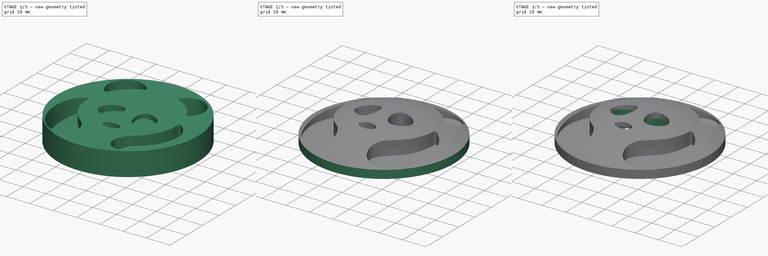
[diagram: build sequence overview — one tinted view per stage of 3, left to right]
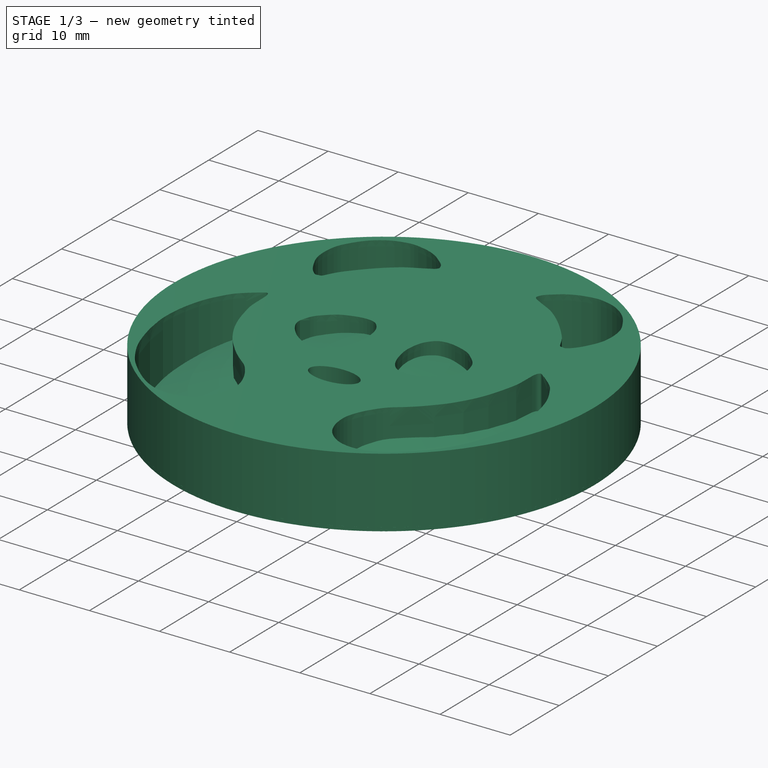
[diagram: stage 1 of 3 — iso view after this stage's code; geometry added in this stage tinted green]
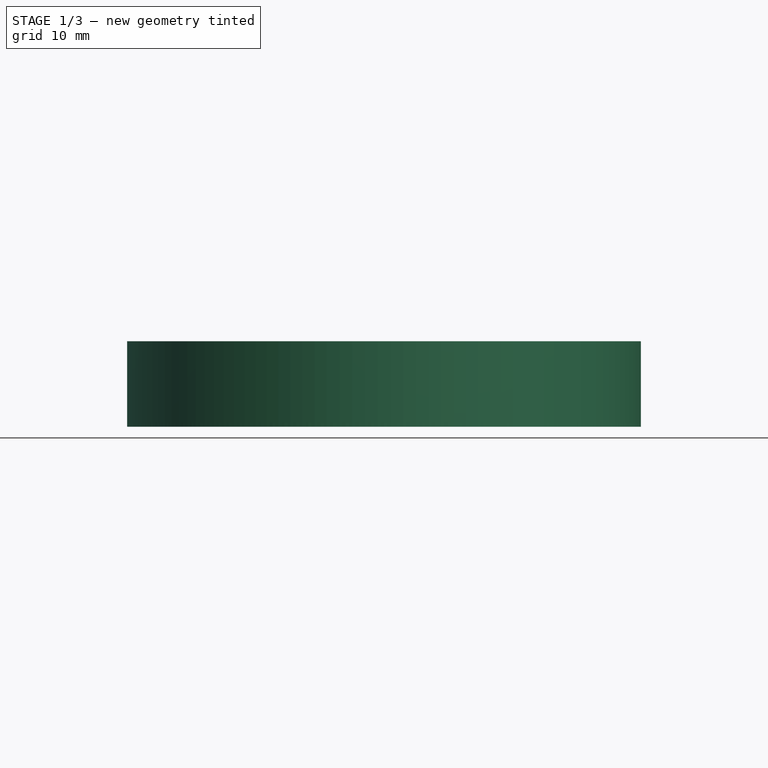
[diagram: stage 1 of 3 — front view after this stage's code; geometry added in this stage tinted green]
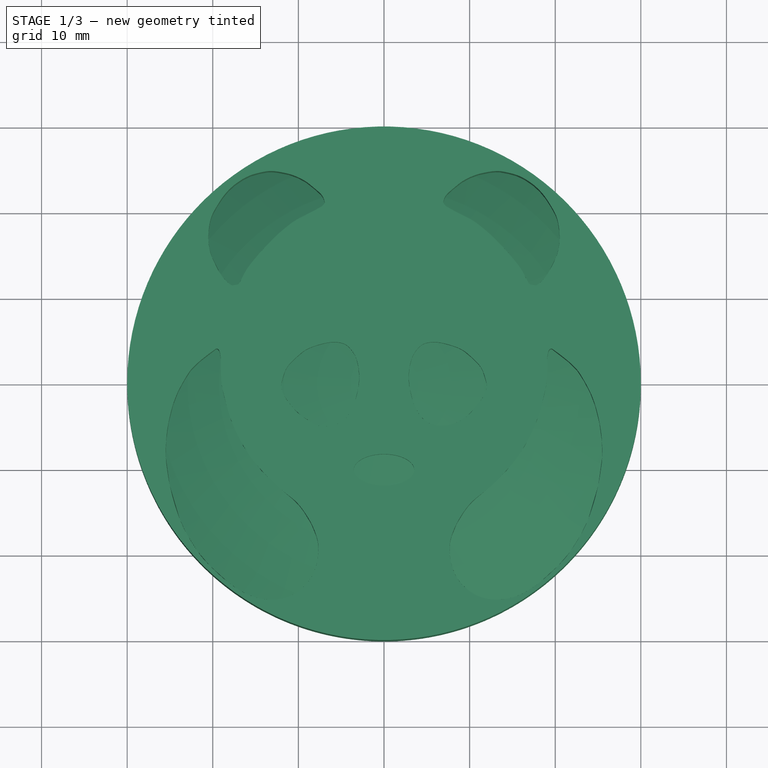
[diagram: stage 1 of 3 — top view after this stage's code; geometry added in this stage tinted green]
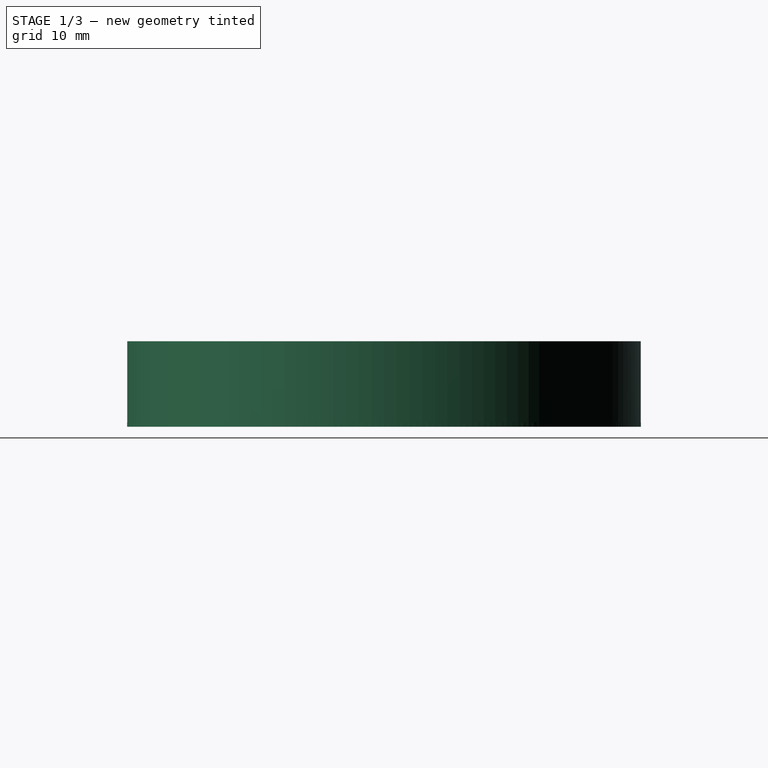
[diagram: stage 1 of 3 — right view after this stage's code; geometry added in this stage tinted green]
FCSTD DOCUMENT  (FreeCAD 1.0R39285 (Git))
Label: PandaMushroom
License: All rights reserved
LicenseURL: https://en.wikipedia.org/wiki/All_rights_reserved
objects: Sketcher::SketchObject×4, Part::Extrusion×3, Image::ImagePlane×1, Spreadsheet::Sheet×1, Part::Revolution×1, Part::MultiCommon×1, Part::MultiFuse×1, Part::Cut×1
note: 15 computed .brp shape members not serialized (recipe doc carries the construction recipe); baked Part::Feature solids carry a one-line shape summary decoded from their .brp

FEATURE [Spreadsheet::Sheet] Spreadsheet  label="dim"
  cells = A1='mushroom_base; B1(mushroom_base)==3 mm; A2='mushroom_radius; B2(mushroom_radius)==30 mm; A3='stem_radius; B3(stem_radius)==13 mm
FEATURE [Sketcher::SketchObject] Sketch002
  ArcFitTolerance = 1e-06
  AttachmentSupport = -> [Sketch001]
  FullyConstrained = true
  MakeInternals = false
  MapMode = 4
  Placement = pos=(0,0,0) rot=(0.57735,0.57735,0.57735;2.0944rad)
  expr: Constraints[14] = <<dim>>.mushroom_base
  expr: Constraints[1] = <<dim>>.mushroom_radius
  sketch-geometry (7):
    g0: GeomPoint X=-1.5947e-12 Y=11.5 Z=0
    g1: ArcOfCircle [constr] CenterX=-1.3844e-12 CenterY=-48.75 CenterZ=0 NormalX=0 NormalY=0 NormalZ=1 AngleXU=0 Radius=60.25 StartAngle=1.04959 EndAngle=2.092
    g2: ArcOfCircle CenterX=-1.3844e-12 CenterY=-48.75 CenterZ=0 NormalX=0 NormalY=0 NormalZ=1 AngleXU=0 Radius=60.25 StartAngle=1.04959 EndAngle=1.5708
    g3: LineSegment StartX=-1.5947e-12 StartY=11.5 StartZ=0 EndX=0 EndY=3.5 EndZ=0
    g4: LineSegment StartX=0 StartY=3.5 StartZ=0 EndX=0 EndY=3 EndZ=0
    g5: LineSegment StartX=0 StartY=3 StartZ=0 EndX=30 EndY=3 EndZ=0
    g6: LineSegment StartX=30 StartY=3 StartZ=0 EndX=30 EndY=3.5 EndZ=0
  constraints (19):
    c: PointOnObject(g3,g-2)
    c: DistanceX(g3,g1) = 30
    c: PointOnObject(g0,g-2)
    c: Symmetric(g1,g1,g-2)
    c: Coincident(g2,g0)
    c: Coincident(g2,g1)
    c: Coincident(g3,g0)
    c: Coincident(g3,g4)
    c: PointOnObject(g4,g-2)
    c: Coincident(g4,g5)
    c: Horizontal(g5)
    c: Coincident(g5,g6)
    c: Coincident(g6,g2)
    c: Vertical(g6)
    c: Distance(g4,g-1) = 3
    c: Coincident(g2,g1)
    c: Horizontal(g1,g3)
    c: DistanceY(g4,g4) = 0.5
    c: DistanceY(g3,g0) = 8
FEATURE [Part::Revolution] Revolve  label="Dome"
  Angle = 360
  Axis = (0,0,1)
  Base = (0,0,0)
  FaceMakerClass = Part::FaceMakerBullseye
  Solid = true
  Source = -> Sketch002
  Symmetric = false
FEATURE [Sketcher::SketchObject] Sketch
  ArcFitTolerance = 1e-06
  FullyConstrained = false
  MakeInternals = false
  MapMode = 5
  sketch-geometry (476):
    g0: Ellipse CenterX=0 CenterY=-10.1092 CenterZ=0 NormalX=0 NormalY=0 NormalZ=1 MajorRadius=3.52812 MinorRadius=1.83479 AngleXU=0
    g1: LineSegment [constr] StartX=3.52812 StartY=-10.1092 StartZ=0 EndX=-3.52812 EndY=-10.1092 EndZ=0
    g2: LineSegment [constr] StartX=0 StartY=-8.27442 StartZ=0 EndX=0 EndY=-11.944 EndZ=0
    g3: GeomPoint [constr] X=3.0135 Y=-10.1092 Z=0
    g4: GeomPoint [constr] X=-3.0135 Y=-10.1092 Z=0
    g5-g46: Circle [constr] x42 (B-spline internal-alignment scaffolding for g47; pole/knot coordinates omitted)
    g47: BSplineCurve PolesCount=42 KnotsCount=40 Degree=3 IsPeriodic=0
    g48-g87: GeomPoint [constr] x40 (B-spline internal-alignment scaffolding for g47; pole/knot coordinates omitted)
    g88-g129: Circle [constr] x42 (B-spline internal-alignment scaffolding for g130; pole/knot coordinates omitted)
    g130: BSplineCurve PolesCount=42 KnotsCount=40 Degree=3 IsPeriodic=0
    g131-g170: GeomPoint [constr] x40 (B-spline internal-alignment scaffolding for g130; pole/knot coordinates omitted)
    g171: Circle CenterX=0 CenterY=0 CenterZ=0 NormalX=0 NormalY=0 NormalZ=1 AngleXU=0 Radius=30
    g172-g199: Circle [constr] x28 (B-spline internal-alignment scaffolding for g200; pole/knot coordinates omitted)
    g200: BSplineCurve PolesCount=28 KnotsCount=26 Degree=3 IsPeriodic=0
    g201-g226: GeomPoint [constr] x26 (B-spline internal-alignment scaffolding for g200; pole/knot coordinates omitted)
    g227-g254: Circle [constr] x28 (B-spline internal-alignment scaffolding for g255; pole/knot coordinates omitted)
    g255: BSplineCurve PolesCount=28 KnotsCount=26 Degree=3 IsPeriodic=0
    g256-g281: GeomPoint [constr] x26 (B-spline internal-alignment scaffolding for g255; pole/knot coordinates omitted)
    g282-g330: Circle [constr] x49 (B-spline internal-alignment scaffolding for g331; pole/knot coordinates omitted)
    g331: BSplineCurve PolesCount=49 KnotsCount=47 Degree=3 IsPeriodic=0
    g332-g378: GeomPoint [constr] x47 (B-spline internal-alignment scaffolding for g331; pole/knot coordinates omitted)
    g379-g414: Circle [constr] x36 (B-spline internal-alignment scaffolding for g415; pole/knot coordinates omitted)
    g415: BSplineCurve PolesCount=49 KnotsCount=47 Degree=3 IsPeriodic=0
    g416-g447: GeomPoint [constr] x32 (B-spline internal-alignment scaffolding for g415; pole/knot coordinates omitted)
    g448-g460: Circle [constr] x13 (B-spline internal-alignment scaffolding for g415; pole/knot coordinates omitted)
    g461-g475: GeomPoint [constr] x15 (B-spline internal-alignment scaffolding for g415; pole/knot coordinates omitted)
  constraints (122):
    c: InternalAlignment(g1-g4 -> g0) x4
    c: PointOnObject(g0,g-2)
    c: Horizontal(g1)
    c: Weight(g5) = 1
    c: Equal(g5, g6-g46) x41
    c: InternalAlignment(g5-g46 -> g47) x42
    c: InternalAlignment(g48-g87 -> g47) x40
    c: PointOnObject(g7,g5)
    c: PointOnObject(g8,g7)
    c: PointOnObject(g10,g9)
    c: PointOnObject(g11,g10)
    c: PointOnObject(g13,g12)
    c: PointOnObject(g14,g13)
    c: PointOnObject(g15,g14)
    c: PointOnObject(g16,g15)
    c: PointOnObject(g18,g17)
    c: PointOnObject(g19,g18)
    c: PointOnObject(g21,g20)
    c: PointOnObject(g22,g21)
    c: PointOnObject(g24,g23)
    c: PointOnObject(g25,g24)
    c: PointOnObject(g26,g25)
    c: PointOnObject(g27,g26)
    c: PointOnObject(g28,g27)
    c: PointOnObject(g30,g29)
    c: PointOnObject(g31,g29)
    c: PointOnObject(g33,g30)
    c: PointOnObject(g40,g39)
    c: PointOnObject(g41,g40)
    c: PointOnObject(g42,g41)
    c: PointOnObject(g44,g6)
    c: PointOnObject(g45,g43)
    c: Coincident(g46,g5)
    c: Weight(g88) = 1
    c: Equal(g88, g89-g129) x41
    c: InternalAlignment(g88-g129 -> g130) x42
    c: InternalAlignment(g131-g170 -> g130) x40
    c: PointOnObject(g90,g88)
    c: PointOnObject(g91,g90)
    c: PointOnObject(g93,g92)
    c: PointOnObject(g94,g93)
    c: PointOnObject(g96,g95)
    c: PointOnObject(g97,g96)
    c: PointOnObject(g98,g97)
    c: PointOnObject(g99,g98)
    c: PointOnObject(g101,g100)
    c: PointOnObject(g102,g101)
    c: PointOnObject(g104,g103)
    c: PointOnObject(g105,g104)
    c: PointOnObject(g107,g106)
    c: PointOnObject(g108,g107)
    c: PointOnObject(g109,g108)
    c: PointOnObject(g110,g109)
    c: PointOnObject(g111,g110)
    c: PointOnObject(g113,g112)
    c: PointOnObject(g114,g112)
    c: PointOnObject(g116,g113)
    c: PointOnObject(g123,g122)
    c: PointOnObject(g124,g123)
    c: PointOnObject(g125,g124)
    c: PointOnObject(g127,g89)
    c: PointOnObject(g128,g126)
    c: Coincident(g129,g88)
    c: Coincident(g171,g-1)
    c: Radius(g171) = 30
    c: Weight(g172) = 1
    c: Equal(g172, g173-g199) x27
    c: InternalAlignment(g172-g199 -> g200) x28
    c: InternalAlignment(g201-g226 -> g200) x26
    c: PointOnObject(g172,g-1)
    c: PointOnObject(g174,g173)
    c: PointOnObject(g175,g174)
    c: PointOnObject(g179,g178)
    c: PointOnObject(g180,g179)
    c: PointOnObject(g182,g181)
    c: PointOnObject(g184,g183)
    c: PointOnObject(g190,g189)
    c: PointOnObject(g191,g190)
    c: PointOnObject(g192,g191)
    c: PointOnObject(g193,g192)
    c: PointOnObject(g195,g194)
    c: PointOnObject(g196,g195)
    c: PointOnObject(g197,g196)
    c: Coincident(g199,g172)
    c: Weight(g227) = 1
    c: Equal(g227, g228-g254) x27
    c: InternalAlignment(g227-g254 -> g255) x28
    c: InternalAlignment(g256-g281 -> g255) x26
    c: PointOnObject(g229,g228)
    c: PointOnObject(g230,g229)
    c: PointOnObject(g234,g233)
    c: PointOnObject(g235,g234)
    c: PointOnObject(g237,g236)
    c: PointOnObject(g239,g238)
    c: PointOnObject(g245,g244)
    c: PointOnObject(g246,g245)
    c: PointOnObject(g247,g246)
    c: PointOnObject(g248,g247)
    c: PointOnObject(g250,g249)
    c: PointOnObject(g251,g250)
    c: PointOnObject(g252,g251)
    c: Coincident(g254,g227)
    c: Weight(g282) = 1
    c: Equal(g282, g283-g330) x48
    c: InternalAlignment(g282-g330 -> g331) x49
    c: InternalAlignment(g332-g378 -> g331) x47
    c: PointOnObject(g283,g282)
    c: PointOnObject(g323,g322)
    c: Coincident(g330,g282)
    c: Weight(g379) = 1
    c: Equal(g379, g380-g398) x19
    c: Equal(g379, g448-g460) x13
    c: Equal(g379, g399-g414) x16
    c: InternalAlignment(g379-g398 -> g415) x20
    c: InternalAlignment(g448-g460 -> g415) x13
    c: InternalAlignment(g399-g414 -> g415) x16
    c: InternalAlignment(g416-g433 -> g415) x18
    c: InternalAlignment(g461-g475 -> g415) x15
    c: InternalAlignment(g434-g447 -> g415) x14
    c: PointOnObject(g380,g379)
    c: PointOnObject(g407,g406)
    c: Coincident(g414,g379)
FEATURE [Part::Extrusion] Extrude001  label="White"
  Base = -> Sketch
  Dir = (0,0,1)
  DirMode = 2
  FaceMakerClass = Part::FaceMakerBullseye
  FaceMakerMode = 3
  LengthFwd = 10
  LengthRev = 0
  Placement = pos=(0,0,3) rot=(0,0,1;0rad)
  Solid = true
  Symmetric = false
  expr: .Placement.Base.z = <<dim>>.mushroom_base
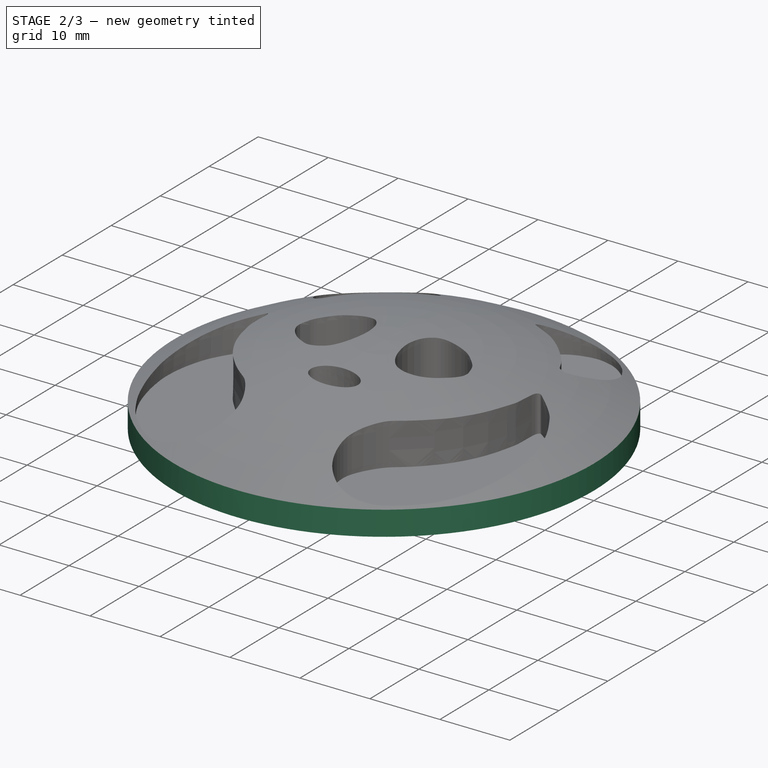
[diagram: stage 2 of 3 — iso view after this stage's code; geometry added in this stage tinted green]
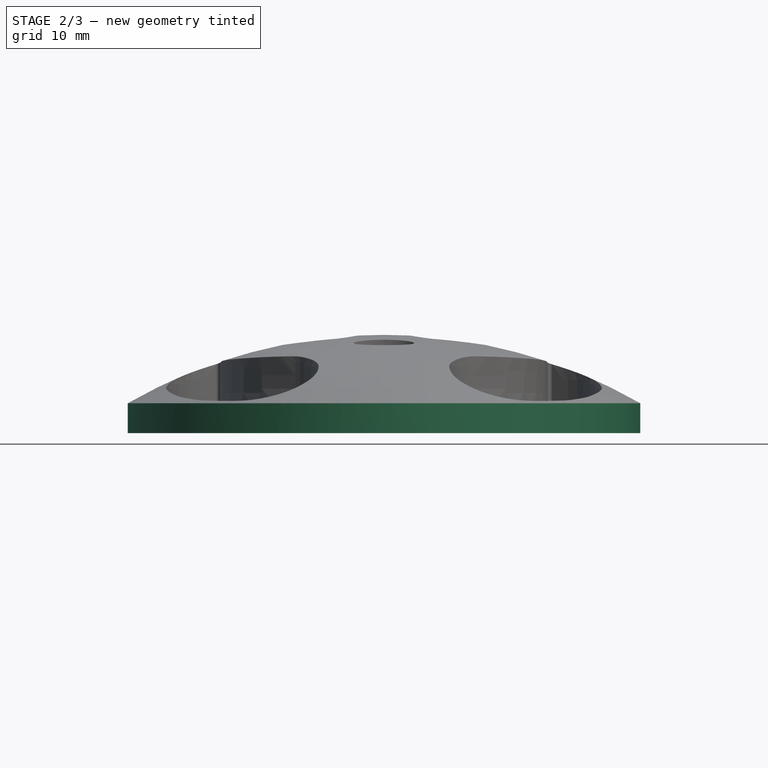
[diagram: stage 2 of 3 — front view after this stage's code; geometry added in this stage tinted green]
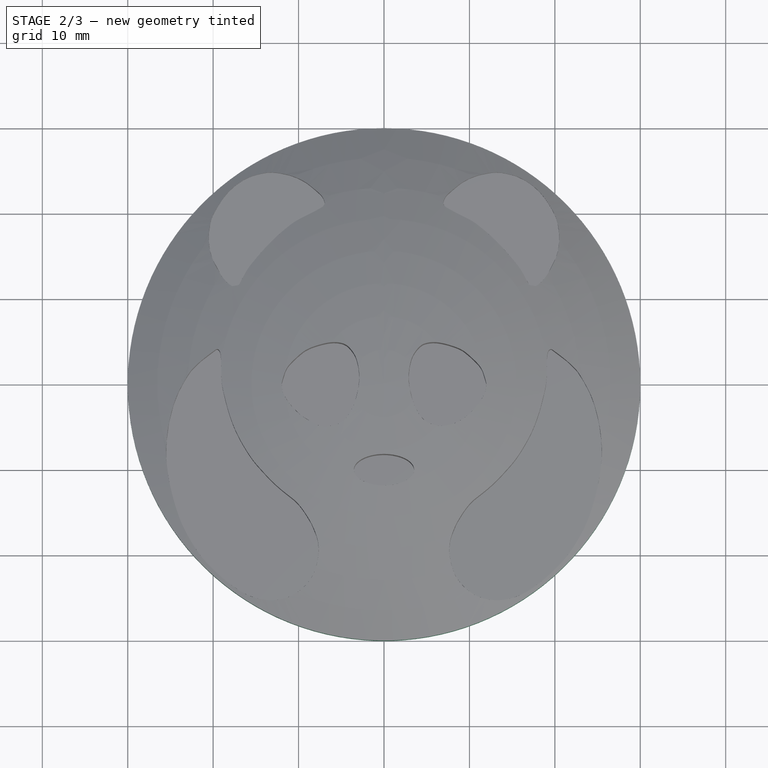
[diagram: stage 2 of 3 — top view after this stage's code; geometry added in this stage tinted green]
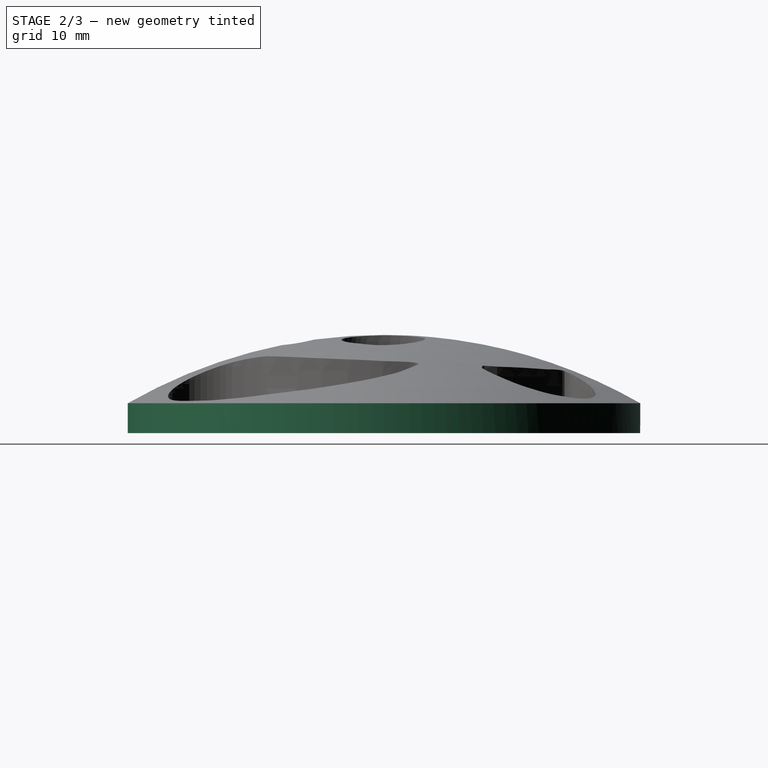
[diagram: stage 2 of 3 — right view after this stage's code; geometry added in this stage tinted green]
FEATURE [Image::ImagePlane] panda
  Placement = pos=(-2,2,0) rot=(0,0,1;0rad)
  XSize = 61.4458
  YSize = 60.7646
FEATURE [Sketcher::SketchObject] Sketch001
  ArcFitTolerance = 1e-06
  FullyConstrained = true
  MakeInternals = false
  expr: Constraints[1] = <<dim>>.mushroom_radius
  sketch-geometry (1):
    g0: Circle CenterX=0 CenterY=0 CenterZ=0 NormalX=0 NormalY=0 NormalZ=1 AngleXU=0 Radius=30
  constraints (2):
    c: Coincident(g0,g-1)
    c: Radius(g0) = 30
FEATURE [Part::Extrusion] Extrude  label="Base"
  Base = -> Sketch001
  Dir = (0,0,1)
  DirMode = 2
  FaceMakerClass = Part::FaceMakerBullseye
  FaceMakerMode = 3
  LengthFwd = 3
  LengthRev = 0
  Solid = true
  Symmetric = false
  expr: LengthFwd = <<dim>>.mushroom_base
FEATURE [Part::MultiCommon] Common
  Refine = true
  Shapes = -> [Extrude001,Revolve]
FEATURE [Part::MultiFuse] Fusion
  Refine = true
  Shapes = -> [Extrude,Common]
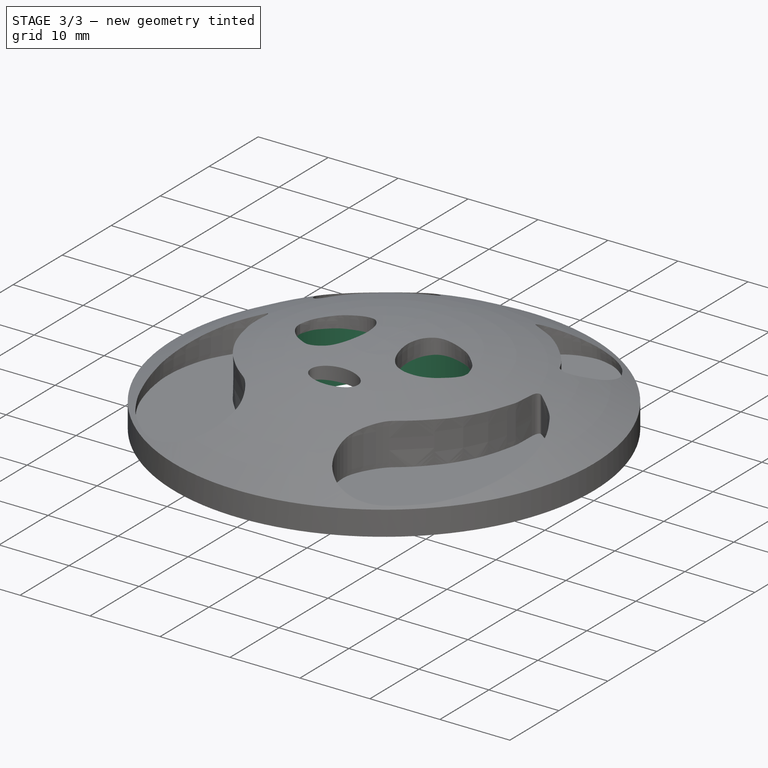
[diagram: stage 3 of 3 — iso view after this stage's code; geometry added in this stage tinted green]
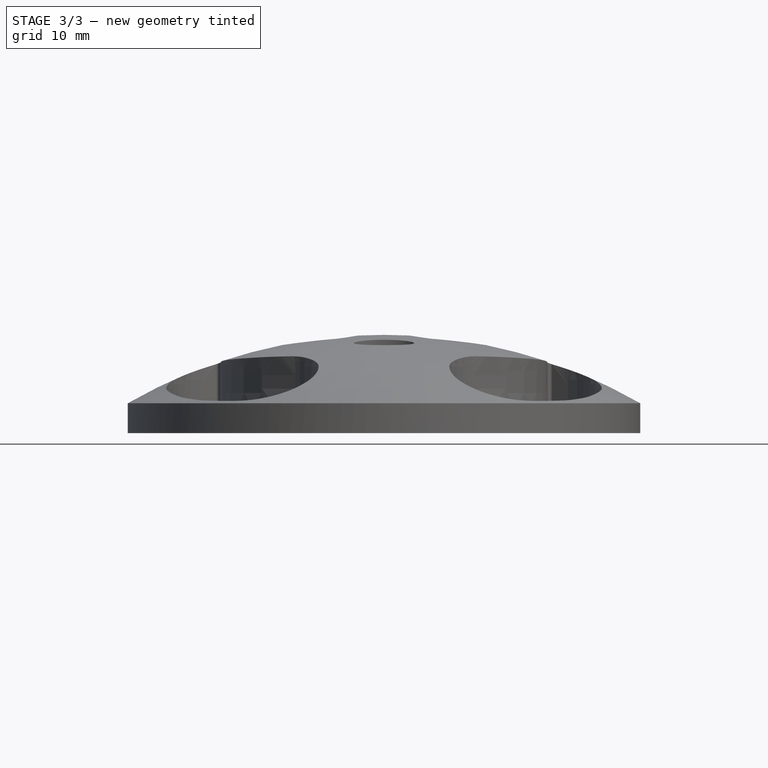
[diagram: stage 3 of 3 — front view after this stage's code; geometry added in this stage tinted green]
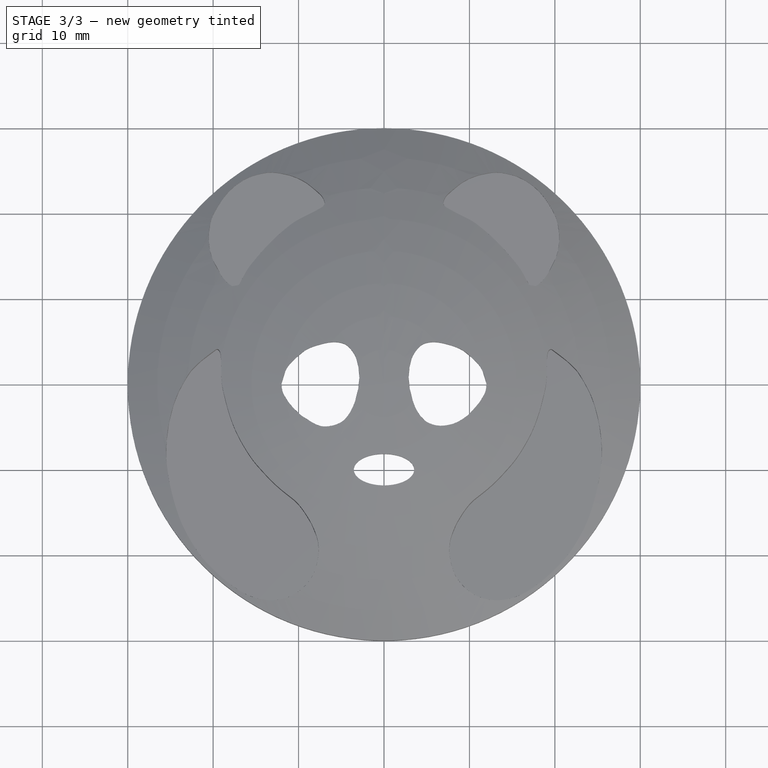
[diagram: stage 3 of 3 — top view after this stage's code; geometry added in this stage tinted green]
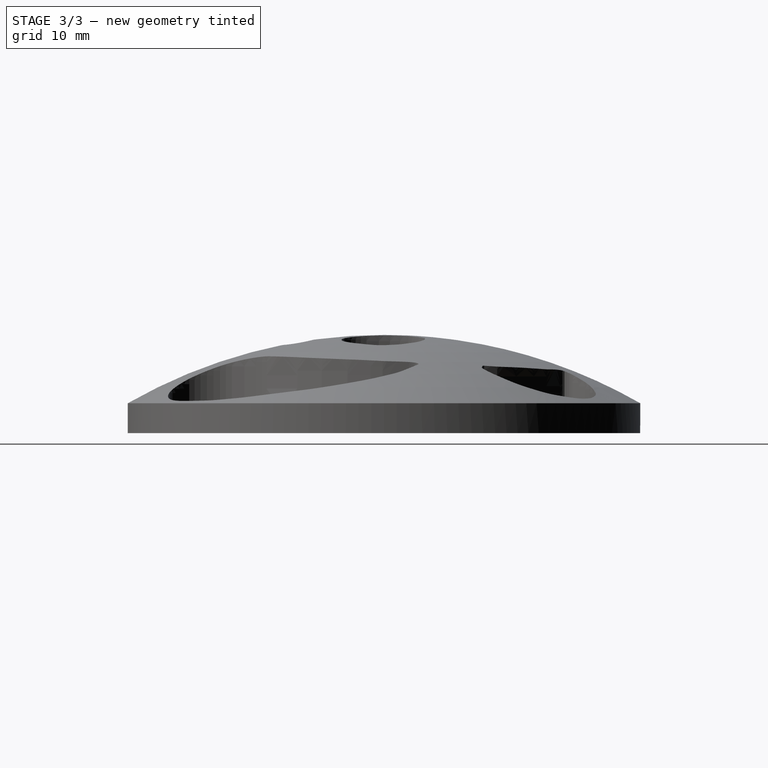
[diagram: stage 3 of 3 — right view after this stage's code; geometry added in this stage tinted green]
FEATURE [Sketcher::SketchObject] Sketch003
  ArcFitTolerance = 1e-06
  FullyConstrained = true
  MakeInternals = false
  expr: Constraints[1] = <<dim>>.stem_radius
  sketch-geometry (1):
    g0: Circle CenterX=0 CenterY=0 CenterZ=0 NormalX=0 NormalY=0 NormalZ=1 AngleXU=0 Radius=13
  constraints (2):
    c: Coincident(g0,g-1)
    c: Radius(g0) = 13
FEATURE [Part::Extrusion] Extrude002  label="Stem"
  Base = -> Sketch003
  Dir = (0,0,1)
  DirMode = 2
  FaceMakerClass = Part::FaceMakerBullseye
  FaceMakerMode = 3
  LengthFwd = 9
  LengthRev = 6
  Solid = true
  Symmetric = false
  expr: LengthFwd = <<dim>>.mushroom_base + 6 mm
FEATURE [Part::Cut] Cut  label="Mushroom"
  Base = -> Fusion
  Refine = true
  Tool = -> Extrude002
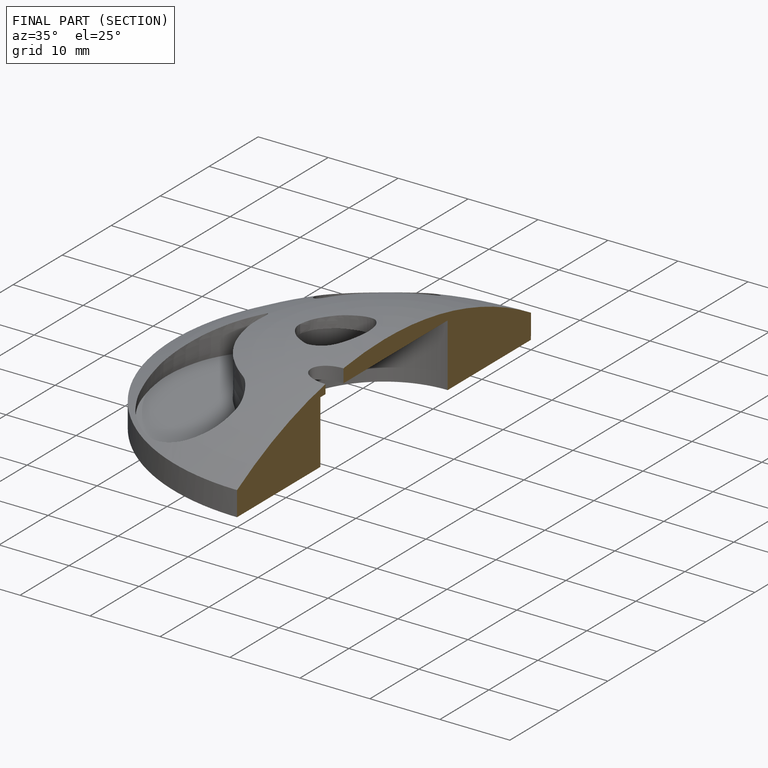
[diagram: finished part — half-section view (interior)]
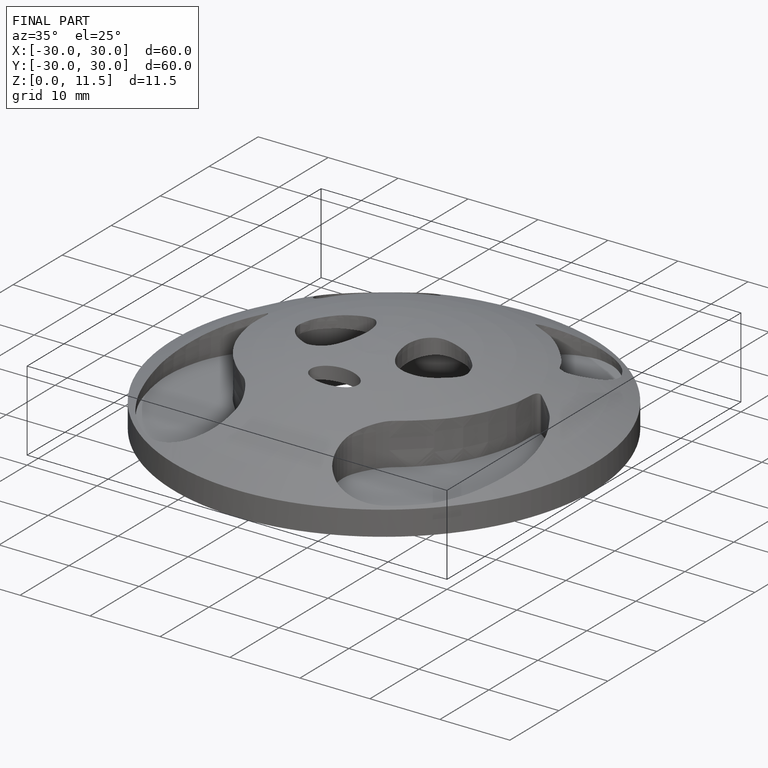
[diagram: finished part — iso view with bounding-box wireframe]
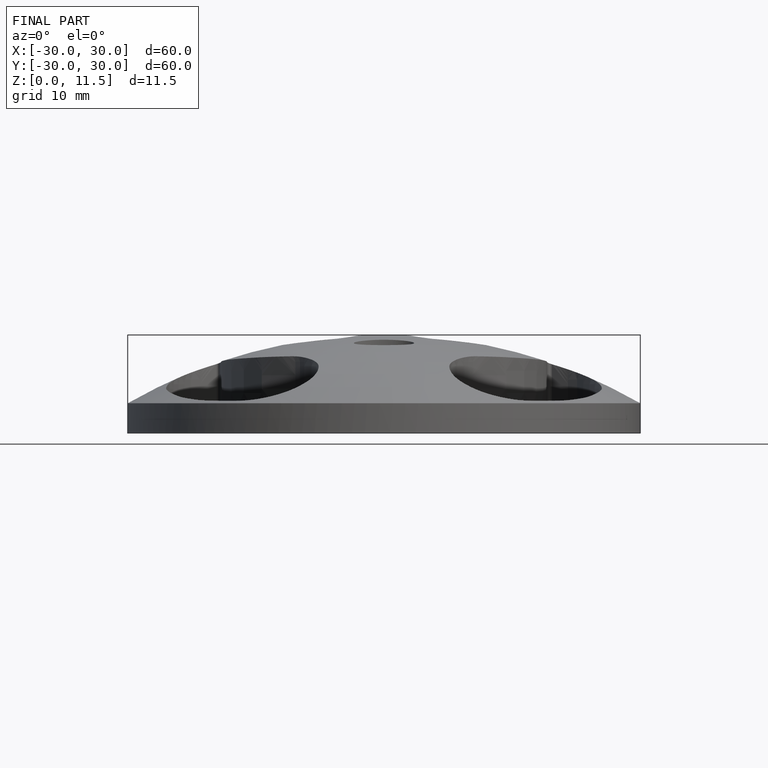
[diagram: finished part — front view with bounding-box wireframe]
